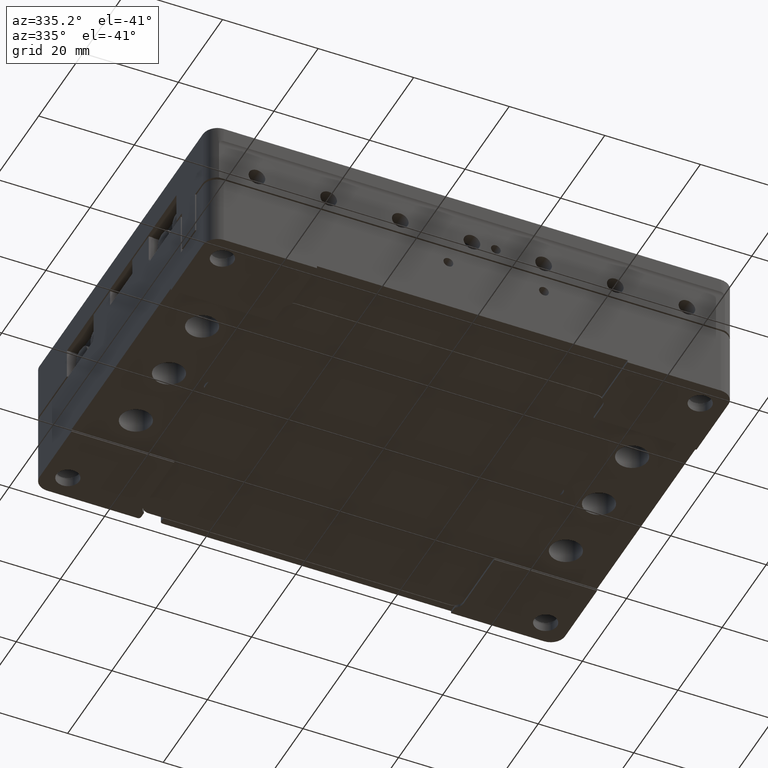
[diagram: clean part render]
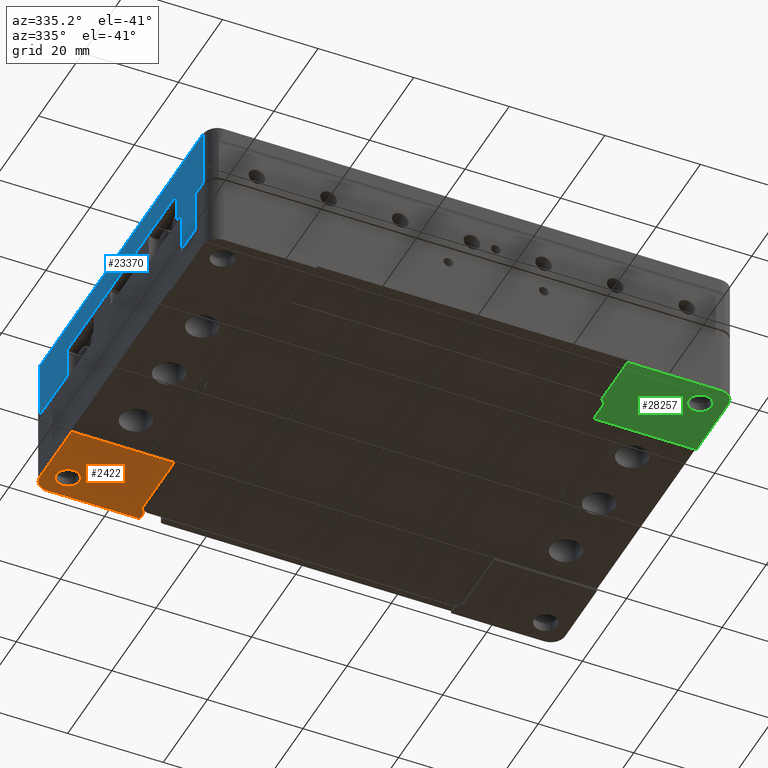
[diagram: same view with three faces highlighted in distinct colors, each labeled with its STEP entity id]
A machine part, auxiliary view with three faces highlighted in distinct colors.
Their STEP definitions:

[orange] entity #2422 — the highlighted planar face has unit normal (0, 0, -1).
#741 = CARTESIAN_POINT ( 'NONE',  ( -33.09999999999999432, 39.50000000000000000, -15.00000000000000000 ) ) ;
#914 = ORIENTED_EDGE ( 'NONE', *, *, #15914, .T. ) ;
#917 = VERTEX_POINT ( 'NONE', #14094 ) ;
#2074 = DIRECTION ( 'NONE',  ( 1.000000000000000000, 0.000000000000000000, 0.000000000000000000 ) ) ;
#2422 = ADVANCED_FACE ( 'NONE', ( #6716, #17646 ), #17818, .T. ) ;
#2550 = LINE ( 'NONE', #35309, #31208 ) ;
#2868 = ORIENTED_EDGE ( 'NONE', *, *, #35227, .T. ) ;
#2891 = DIRECTION ( 'NONE',  ( 0.000000000000000000, 0.000000000000000000, 1.000000000000000000 ) ) ;
#3224 = CARTESIAN_POINT ( 'NONE',  ( -55.00000000000000000, 40.00000000000000000, -15.00000000000000000 ) ) ;
#3294 = VERTEX_POINT ( 'NONE', #33971 ) ;
#4594 = ORIENTED_EDGE ( 'NONE', *, *, #30268, .T. ) ;
#5190 = DIRECTION ( 'NONE',  ( 0.000000000000000000, -1.000000000000000000, 0.000000000000000000 ) ) ;
#5610 = CARTESIAN_POINT ( 'NONE',  ( -33.09999999999999432, 40.00000000000000000, -15.00000000000000000 ) ) ;
#6716 = FACE_OUTER_BOUND ( 'NONE', #35248, .T. ) ;
#6754 = AXIS2_PLACEMENT_3D ( 'NONE', #33745, #28025, #9577 ) ;
#6883 = ORIENTED_EDGE ( 'NONE', *, *, #31737, .F. ) ;
#7872 = CARTESIAN_POINT ( 'NONE',  ( -33.50000000000000000, -26.50000000000000000, -15.00000000000000000 ) ) ;
#8054 = VERTEX_POINT ( 'NONE', #9545 ) ;
#8699 = CARTESIAN_POINT ( 'NONE',  ( -47.60000000000000142, 35.00000000000000000, -15.00000000000000000 ) ) ;
#8825 = VECTOR ( 'NONE', #27685, 1000.000000000000000 ) ;
#8880 = AXIS2_PLACEMENT_3D ( 'NONE', #741, #2891, #27778 ) ;
#9545 = CARTESIAN_POINT ( 'NONE',  ( -33.50000000000000000, 22.50000000000000000, -15.00000000000000000 ) ) ;
#9560 = VERTEX_POINT ( 'NONE', #5610 ) ;
#9577 = DIRECTION ( 'NONE',  ( 0.000000000000000000, -1.000000000000000000, 0.000000000000000000 ) ) ;
#9687 = VECTOR ( 'NONE', #31334, 1000.000000000000000 ) ;
#9711 = VERTEX_POINT ( 'NONE', #33696 ) ;
#10277 = EDGE_CURVE ( 'NONE', #22558, #9560, #27754, .T. ) ;
#11480 = ORIENTED_EDGE ( 'NONE', *, *, #24322, .T. ) ;
#11689 = EDGE_CURVE ( 'NONE', #19168, #22558, #31914, .T. ) ;
#13103 = VERTEX_POINT ( 'NONE', #8699 ) ;
#13762 = CARTESIAN_POINT ( 'NONE',  ( -32.59999999999999432, 38.17032930884949593, -15.00000000000000000 ) ) ;
#14029 = EDGE_CURVE ( 'NONE', #8054, #917, #14695, .T. ) ;
#14094 = CARTESIAN_POINT ( 'NONE',  ( -55.00000000000000000, 22.50000000000000000, -15.00000000000000000 ) ) ;
#14522 = EDGE_LOOP ( 'NONE', ( #2868, #914 ) ) ;
#14695 = LINE ( 'NONE', #20414, #9687 ) ;
#14879 = EDGE_CURVE ( 'NONE', #9711, #28971, #33056, .T. ) ;
#15914 = EDGE_CURVE ( 'NONE', #3294, #13103, #31766, .T. ) ;
#16101 = AXIS2_PLACEMENT_3D ( 'NONE', #33293, #19161, #25073 ) ;
#16273 = CARTESIAN_POINT ( 'NONE',  ( -52.00000000000000000, 37.00000000000000000, -15.00000000000000000 ) ) ;
#16771 = CARTESIAN_POINT ( 'NONE',  ( -32.59999999999999432, -40.00000000000000000, -15.00000000000000000 ) ) ;
#17541 = CARTESIAN_POINT ( 'NONE',  ( -33.50000000000000000, 36.50000000000000000, -15.00000000000000000 ) ) ;
#17646 = FACE_BOUND ( 'NONE', #14522, .T. ) ;
#17818 = PLANE ( 'NONE',  #6754 ) ;
#18122 = VECTOR ( 'NONE', #33300, 1000.000000000000000 ) ;
#18711 = CIRCLE ( 'NONE', #27301, 2.399999999999999467 ) ;
#18749 = DIRECTION ( 'NONE',  ( 1.000000000000000000, 0.000000000000000000, 0.000000000000000000 ) ) ;
#18846 = ORIENTED_EDGE ( 'NONE', *, *, #10277, .T. ) ;
#19161 = DIRECTION ( 'NONE',  ( 0.000000000000000000, 0.000000000000000000, 1.000000000000000000 ) ) ;
#19168 = VERTEX_POINT ( 'NONE', #30992 ) ;
#20414 = CARTESIAN_POINT ( 'NONE',  ( -65.00000000000000000, 22.50000000000000000, -15.00000000000000000 ) ) ;
#21251 = CIRCLE ( 'NONE', #16101, 2.000000000000001776 ) ;
#21462 = ORIENTED_EDGE ( 'NONE', *, *, #14029, .T. ) ;
#22558 = VERTEX_POINT ( 'NONE', #25760 ) ;
#22742 = ORIENTED_EDGE ( 'NONE', *, *, #14879, .T. ) ;
#23767 = AXIS2_PLACEMENT_3D ( 'NONE', #32348, #24833, #18749 ) ;
#23864 = DIRECTION ( 'NONE',  ( 0.000000000000000000, 1.000000000000000000, 0.000000000000000000 ) ) ;
#24317 = DIRECTION ( 'NONE',  ( -1.000000000000000000, 0.000000000000000000, 0.000000000000000000 ) ) ;
#24322 = EDGE_CURVE ( 'NONE', #28971, #26309, #21251, .T. ) ;
#24833 = DIRECTION ( 'NONE',  ( 0.000000000000000000, 0.000000000000000000, 1.000000000000000000 ) ) ;
#25073 = DIRECTION ( 'NONE',  ( -1.000000000000000000, -6.938893903907222067E-15, 0.000000000000000000 ) ) ;
#25760 = CARTESIAN_POINT ( 'NONE',  ( -52.00000000000000000, 40.00000000000000000, -15.00000000000000000 ) ) ;
#26309 = VERTEX_POINT ( 'NONE', #17541 ) ;
#27301 = AXIS2_PLACEMENT_3D ( 'NONE', #31985, #35017, #2074 ) ;
#27541 = DIRECTION ( 'NONE',  ( 0.000000000000000000, 0.000000000000000000, -1.000000000000000000 ) ) ;
#27685 = DIRECTION ( 'NONE',  ( 0.000000000000000000, -1.000000000000000000, 0.000000000000000000 ) ) ;
#27754 = LINE ( 'NONE', #3224, #18122 ) ;
#27778 = DIRECTION ( 'NONE',  ( -1.000000000000000000, 0.000000000000000000, 0.000000000000000000 ) ) ;
#28025 = DIRECTION ( 'NONE',  ( 0.000000000000000000, 0.000000000000000000, -1.000000000000000000 ) ) ;
#28789 = VECTOR ( 'NONE', #5190, 1000.000000000000000 ) ;
#28971 = VERTEX_POINT ( 'NONE', #13762 ) ;
#29190 = ORIENTED_EDGE ( 'NONE', *, *, #32811, .T. ) ;
#30268 = EDGE_CURVE ( 'NONE', #26309, #8054, #32388, .T. ) ;
#30586 = CIRCLE ( 'NONE', #8880, 0.5000000000000004441 ) ;
#30992 = CARTESIAN_POINT ( 'NONE',  ( -55.00000000000000000, 37.00000000000000000, -15.00000000000000000 ) ) ;
#31208 = VECTOR ( 'NONE', #23864, 1000.000000000000000 ) ;
#31334 = DIRECTION ( 'NONE',  ( -1.000000000000000000, 0.000000000000000000, 0.000000000000000000 ) ) ;
#31737 = EDGE_CURVE ( 'NONE', #9711, #9560, #30586, .T. ) ;
#31766 = CIRCLE ( 'NONE', #23767, 2.399999999999999467 ) ;
#31914 = CIRCLE ( 'NONE', #33061, 3.000000000000002665 ) ;
#31985 = CARTESIAN_POINT ( 'NONE',  ( -50.00000000000000000, 35.00000000000000000, -15.00000000000000000 ) ) ;
#32348 = CARTESIAN_POINT ( 'NONE',  ( -50.00000000000000000, 35.00000000000000000, -15.00000000000000000 ) ) ;
#32388 = LINE ( 'NONE', #7872, #28789 ) ;
#32811 = EDGE_CURVE ( 'NONE', #917, #19168, #2550, .T. ) ;
#33056 = LINE ( 'NONE', #16771, #8825 ) ;
#33061 = AXIS2_PLACEMENT_3D ( 'NONE', #16273, #27541, #24317 ) ;
#33293 = CARTESIAN_POINT ( 'NONE',  ( -31.50000000000000000, 36.50000000000000000, -15.00000000000000000 ) ) ;
#33300 = DIRECTION ( 'NONE',  ( 1.000000000000000000, 0.000000000000000000, 0.000000000000000000 ) ) ;
#33696 = CARTESIAN_POINT ( 'NONE',  ( -32.59999999999999432, 39.50000000000000000, -15.00000000000000000 ) ) ;
#33745 = CARTESIAN_POINT ( 'NONE',  ( -55.00000000000000000, -40.00000000000000000, -15.00000000000000000 ) ) ;
#33971 = CARTESIAN_POINT ( 'NONE',  ( -52.40000000000000568, 35.00000000000000000, -15.00000000000000000 ) ) ;
#35017 = DIRECTION ( 'NONE',  ( 0.000000000000000000, 0.000000000000000000, 1.000000000000000000 ) ) ;
#35227 = EDGE_CURVE ( 'NONE', #13103, #3294, #18711, .T. ) ;
#35248 = EDGE_LOOP ( 'NONE', ( #18846, #6883, #22742, #11480, #4594, #21462, #29190, #35286 ) ) ;
#35286 = ORIENTED_EDGE ( 'NONE', *, *, #11689, .T. ) ;
#35309 = CARTESIAN_POINT ( 'NONE',  ( -55.00000000000000000, 0.000000000000000000, -15.00000000000000000 ) ) ;

[blue] entity #23370 — the highlighted planar face has unit normal (1, 0, 0).
#480 = VERTEX_POINT ( 'NONE', #17181 ) ;
#857 = DIRECTION ( 'NONE',  ( 0.000000000000000000, 0.000000000000000000, 1.000000000000000000 ) ) ;
#1091 = EDGE_CURVE ( 'NONE', #33461, #32857, #20969, .T. ) ;
#1403 = CARTESIAN_POINT ( 'NONE',  ( -55.00000000000000000, -33.50000000000000000, -8.500000000000000000 ) ) ;
#1636 = LINE ( 'NONE', #9522, #26153 ) ;
#1797 = ORIENTED_EDGE ( 'NONE', *, *, #1091, .F. ) ;
#1894 = VECTOR ( 'NONE', #15584, 1000.000000000000000 ) ;
#2779 = CARTESIAN_POINT ( 'NONE',  ( -55.00000000000000000, -25.00000000000000000, 0.5000000000000000000 ) ) ;
#2828 = CARTESIAN_POINT ( 'NONE',  ( -54.99999999790499317, 36.99999998782499233, 12.90000000411390069 ) ) ;
#3064 = CARTESIAN_POINT ( 'NONE',  ( -55.00000000000000000, 24.60000000000000142, 7.000000000000000000 ) ) ;
#3381 = LINE ( 'NONE', #22876, #17208 ) ;
#3481 = DIRECTION ( 'NONE',  ( 0.000000000000000000, 1.000000000000000000, 0.000000000000000000 ) ) ;
#3740 = CARTESIAN_POINT ( 'NONE',  ( -55.00000000000000000, 24.60000000000000142, 0.000000000000000000 ) ) ;
#4223 = LINE ( 'NONE', #25397, #15716 ) ;
#4563 = DIRECTION ( 'NONE',  ( 0.000000000000000000, 0.000000000000000000, 1.000000000000000000 ) ) ;
#4812 = EDGE_CURVE ( 'NONE', #18769, #14215, #27506, .T. ) ;
#5675 = VERTEX_POINT ( 'NONE', #2828 ) ;
#6000 = DIRECTION ( 'NONE',  ( 1.000000000000000000, 0.000000000000000000, 0.000000000000000000 ) ) ;
#6022 = VECTOR ( 'NONE', #10032, 1000.000000000000000 ) ;
#6473 = EDGE_CURVE ( 'NONE', #32857, #33392, #18176, .T. ) ;
#6497 = CARTESIAN_POINT ( 'NONE',  ( -55.00000000000000000, 37.00000000000000000, 0.5000000000000000000 ) ) ;
#6971 = DIRECTION ( 'NONE',  ( 0.000000000000000000, 0.000000000000000000, -1.000000000000000000 ) ) ;
#7136 = VECTOR ( 'NONE', #31466, 1000.000000000000000 ) ;
#7140 = EDGE_CURVE ( 'NONE', #14215, #480, #20015, .T. ) ;
#7906 = VECTOR ( 'NONE', #6971, 1000.000000000000000 ) ;
#7949 = VECTOR ( 'NONE', #30269, 1000.000000000000000 ) ;
#8540 = ORIENTED_EDGE ( 'NONE', *, *, #14480, .F. ) ;
#8772 = EDGE_CURVE ( 'NONE', #24643, #20369, #4223, .T. ) ;
#8805 = ORIENTED_EDGE ( 'NONE', *, *, #7140, .F. ) ;
#9142 = VERTEX_POINT ( 'NONE', #13524 ) ;
#9345 = CARTESIAN_POINT ( 'NONE',  ( -55.00000000000000000, 0.000000000000000000, -8.500000000000000000 ) ) ;
#9522 = CARTESIAN_POINT ( 'NONE',  ( -55.00000000000000000, -40.00000000000000000, 7.000000000000000000 ) ) ;
#10032 = DIRECTION ( 'NONE',  ( 0.000000000000000000, 0.000000000000000000, 1.000000000000000000 ) ) ;
#10976 = VERTEX_POINT ( 'NONE', #6497 ) ;
#11121 = ORIENTED_EDGE ( 'NONE', *, *, #12516, .F. ) ;
#12077 = CARTESIAN_POINT ( 'NONE',  ( -54.99999999683110019, -36.99999997970999743, 12.90000000420373993 ) ) ;
#12337 = LINE ( 'NONE', #3740, #7906 ) ;
#12516 = EDGE_CURVE ( 'NONE', #9142, #10976, #18999, .T. ) ;
#13524 = CARTESIAN_POINT ( 'NONE',  ( -55.00000000000000000, 24.60000000000000142, 0.5000000000000000000 ) ) ;
#13809 = VERTEX_POINT ( 'NONE', #3064 ) ;
#13812 = CARTESIAN_POINT ( 'NONE',  ( -55.00000000000000000, 0.000000000000000000, 0.5000000000000000000 ) ) ;
#14215 = VERTEX_POINT ( 'NONE', #26660 ) ;
#14480 = EDGE_CURVE ( 'NONE', #480, #33461, #3381, .T. ) ;
#14762 = ORIENTED_EDGE ( 'NONE', *, *, #19199, .F. ) ;
#15055 = LINE ( 'NONE', #34210, #1894 ) ;
#15584 = DIRECTION ( 'NONE',  ( 0.000000000000000000, -1.000000000000000000, 0.000000000000000000 ) ) ;
#15716 = VECTOR ( 'NONE', #857, 1000.000000000000000 ) ;
#17181 = CARTESIAN_POINT ( 'NONE',  ( -55.00000000000000000, -33.50000000000000000, 0.5000000000000000000 ) ) ;
#17208 = VECTOR ( 'NONE', #33803, 1000.000000000000000 ) ;
#18117 = DIRECTION ( 'NONE',  ( 0.000000000000000000, 1.000000000000000000, 0.000000000000000000 ) ) ;
#18176 = LINE ( 'NONE', #29089, #29365 ) ;
#18351 = VECTOR ( 'NONE', #3481, 1000.000000000000000 ) ;
#18769 = VERTEX_POINT ( 'NONE', #12077 ) ;
#18895 = CARTESIAN_POINT ( 'NONE',  ( -55.00000000000000000, 0.000000000000000000, 0.000000000000000000 ) ) ;
#18999 = LINE ( 'NONE', #13812, #7949 ) ;
#19106 = LINE ( 'NONE', #32532, #6022 ) ;
#19199 = EDGE_CURVE ( 'NONE', #20369, #13809, #1636, .T. ) ;
#19351 = ORIENTED_EDGE ( 'NONE', *, *, #22201, .F. ) ;
#19606 = DIRECTION ( 'NONE',  ( 0.000000000000000000, 1.000000000000000000, 0.000000000000000000 ) ) ;
#19654 = EDGE_CURVE ( 'NONE', #13809, #9142, #12337, .T. ) ;
#20015 = LINE ( 'NONE', #30928, #7136 ) ;
#20369 = VERTEX_POINT ( 'NONE', #27441 ) ;
#20436 = DIRECTION ( 'NONE',  ( 0.000000000000000000, 1.000000000000000000, 0.000000000000000000 ) ) ;
#20706 = VECTOR ( 'NONE', #21953, 1000.000000000000000 ) ;
#20969 = LINE ( 'NONE', #9345, #31807 ) ;
#21573 = PLANE ( 'NONE',  #28134 ) ;
#21953 = DIRECTION ( 'NONE',  ( 0.000000000000000000, 0.000000000000000000, -1.000000000000000000 ) ) ;
#22201 = EDGE_CURVE ( 'NONE', #33392, #24643, #30678, .T. ) ;
#22876 = CARTESIAN_POINT ( 'NONE',  ( -55.00000000000000000, -33.50000000000000000, 0.000000000000000000 ) ) ;
#23370 = ADVANCED_FACE ( 'NONE', ( #35175 ), #21573, .F. ) ;
#23380 = ORIENTED_EDGE ( 'NONE', *, *, #6473, .F. ) ;
#24035 = CARTESIAN_POINT ( 'NONE',  ( -55.00000000000000000, -27.50000000000000000, -8.500000000000000000 ) ) ;
#24486 = ORIENTED_EDGE ( 'NONE', *, *, #32022, .F. ) ;
#24641 = CARTESIAN_POINT ( 'NONE',  ( -55.00000000000000000, -36.99999997970999743, -16.44679999999999964 ) ) ;
#24643 = VERTEX_POINT ( 'NONE', #2779 ) ;
#25397 = CARTESIAN_POINT ( 'NONE',  ( -55.00000000000000000, -25.00000000000000000, 0.000000000000000000 ) ) ;
#26153 = VECTOR ( 'NONE', #20436, 1000.000000000000000 ) ;
#26660 = CARTESIAN_POINT ( 'NONE',  ( -55.00000000000000000, -36.99999998985499872, 0.5000000000000000000 ) ) ;
#27441 = CARTESIAN_POINT ( 'NONE',  ( -55.00000000000000000, -25.00000000000000000, 7.000000000000000000 ) ) ;
#27506 = LINE ( 'NONE', #24641, #20706 ) ;
#28009 = CARTESIAN_POINT ( 'NONE',  ( -55.00000000000000000, 0.000000000000000000, 0.5000000000000000000 ) ) ;
#28134 = AXIS2_PLACEMENT_3D ( 'NONE', #18895, #6000, #19606 ) ;
#29089 = CARTESIAN_POINT ( 'NONE',  ( -55.00000000000000000, -27.50000000000000000, 0.000000000000000000 ) ) ;
#29365 = VECTOR ( 'NONE', #4563, 1000.000000000000000 ) ;
#30079 = EDGE_CURVE ( 'NONE', #5675, #18769, #15055, .T. ) ;
#30269 = DIRECTION ( 'NONE',  ( 0.000000000000000000, 1.000000000000000000, 0.000000000000000000 ) ) ;
#30678 = LINE ( 'NONE', #28009, #18351 ) ;
#30817 = ORIENTED_EDGE ( 'NONE', *, *, #19654, .F. ) ;
#30928 = CARTESIAN_POINT ( 'NONE',  ( -55.00000000000000000, 0.000000000000000000, 0.5000000000000000000 ) ) ;
#31313 = ORIENTED_EDGE ( 'NONE', *, *, #30079, .F. ) ;
#31466 = DIRECTION ( 'NONE',  ( 0.000000000000000000, 1.000000000000000000, 0.000000000000000000 ) ) ;
#31807 = VECTOR ( 'NONE', #18117, 1000.000000000000000 ) ;
#32022 = EDGE_CURVE ( 'NONE', #10976, #5675, #19106, .T. ) ;
#32146 = CARTESIAN_POINT ( 'NONE',  ( -55.00000000000000000, -27.50000000000000000, 0.5000000000000000000 ) ) ;
#32526 = ORIENTED_EDGE ( 'NONE', *, *, #4812, .F. ) ;
#32532 = CARTESIAN_POINT ( 'NONE',  ( -55.00000000000000000, 37.00000000000000000, 0.000000000000000000 ) ) ;
#32857 = VERTEX_POINT ( 'NONE', #24035 ) ;
#33392 = VERTEX_POINT ( 'NONE', #32146 ) ;
#33461 = VERTEX_POINT ( 'NONE', #1403 ) ;
#33803 = DIRECTION ( 'NONE',  ( 0.000000000000000000, 0.000000000000000000, -1.000000000000000000 ) ) ;
#34210 = CARTESIAN_POINT ( 'NONE',  ( -54.99999999581000054, 0.000000000000000000, 12.90000000419000159 ) ) ;
#34336 = EDGE_LOOP ( 'NONE', ( #35240, #19351, #23380, #1797, #8540, #8805, #32526, #31313, #24486, #11121, #30817, #14762 ) ) ;
#35175 = FACE_OUTER_BOUND ( 'NONE', #34336, .T. ) ;
#35240 = ORIENTED_EDGE ( 'NONE', *, *, #8772, .F. ) ;

[green] entity #28257 — the highlighted planar face has unit normal (0, 0, -1).
#728 = ORIENTED_EDGE ( 'NONE', *, *, #32498, .T. ) ;
#731 = EDGE_LOOP ( 'NONE', ( #13659, #10429 ) ) ;
#791 = DIRECTION ( 'NONE',  ( 0.000000000000000000, 1.000000000000000000, 0.000000000000000000 ) ) ;
#3077 = CIRCLE ( 'NONE', #16248, 2.399999999999999467 ) ;
#3427 = VERTEX_POINT ( 'NONE', #7289 ) ;
#3498 = DIRECTION ( 'NONE',  ( 0.000000000000000000, -1.000000000000000000, 0.000000000000000000 ) ) ;
#3691 = VECTOR ( 'NONE', #28707, 1000.000000000000000 ) ;
#4615 = DIRECTION ( 'NONE',  ( -1.000000000000000000, 0.000000000000000000, 0.000000000000000000 ) ) ;
#5386 = LINE ( 'NONE', #35277, #15233 ) ;
#6784 = AXIS2_PLACEMENT_3D ( 'NONE', #26035, #25683, #15291 ) ;
#7104 = CARTESIAN_POINT ( 'NONE',  ( 55.00000000000000000, -37.00000000000000000, -15.00000000000000000 ) ) ;
#7211 = DIRECTION ( 'NONE',  ( 1.000000000000000000, 0.000000000000000000, 0.000000000000000000 ) ) ;
#7289 = CARTESIAN_POINT ( 'NONE',  ( 52.00000000000000000, -40.00000000000000000, -15.00000000000000000 ) ) ;
#7301 = DIRECTION ( 'NONE',  ( 0.000000000000000000, 0.000000000000000000, -1.000000000000000000 ) ) ;
#7816 = ORIENTED_EDGE ( 'NONE', *, *, #14607, .T. ) ;
#7921 = CARTESIAN_POINT ( 'NONE',  ( 50.00000000000000000, -35.00000000000000000, -15.00000000000000000 ) ) ;
#8133 = EDGE_CURVE ( 'NONE', #25640, #28668, #26377, .T. ) ;
#8348 = CARTESIAN_POINT ( 'NONE',  ( -55.00000000000000000, -40.00000000000000000, -15.00000000000000000 ) ) ;
#9179 = CARTESIAN_POINT ( 'NONE',  ( 47.60000000000000142, -35.00000000000000000, -15.00000000000000000 ) ) ;
#9294 = AXIS2_PLACEMENT_3D ( 'NONE', #8348, #22643, #3498 ) ;
#10030 = EDGE_CURVE ( 'NONE', #3427, #32873, #5386, .T. ) ;
#10429 = ORIENTED_EDGE ( 'NONE', *, *, #14919, .T. ) ;
#11389 = PLANE ( 'NONE',  #9294 ) ;
#12721 = CARTESIAN_POINT ( 'NONE',  ( 32.50000000000000000, -28.23205080756944696, -15.00000000000000000 ) ) ;
#13138 = CARTESIAN_POINT ( 'NONE',  ( 33.50000000000000000, -22.50000000000000000, -15.00000000000000000 ) ) ;
#13462 = CARTESIAN_POINT ( 'NONE',  ( 65.00000000000000000, -22.50000000000000000, -15.00000000000000000 ) ) ;
#13659 = ORIENTED_EDGE ( 'NONE', *, *, #30623, .T. ) ;
#13964 = CIRCLE ( 'NONE', #33973, 2.399999999999999467 ) ;
#14542 = EDGE_LOOP ( 'NONE', ( #31954, #21168, #728, #18269, #16645, #7816, #33026 ) ) ;
#14607 = EDGE_CURVE ( 'NONE', #20210, #3427, #28833, .T. ) ;
#14919 = EDGE_CURVE ( 'NONE', #35388, #34844, #13964, .T. ) ;
#15233 = VECTOR ( 'NONE', #27224, 1000.000000000000000 ) ;
#15291 = DIRECTION ( 'NONE',  ( -1.000000000000000000, 3.469446951953611033E-15, 0.000000000000000000 ) ) ;
#16245 = DIRECTION ( 'NONE',  ( 0.000000000000000000, 0.000000000000000000, 1.000000000000000000 ) ) ;
#16248 = AXIS2_PLACEMENT_3D ( 'NONE', #21254, #16245, #21428 ) ;
#16645 = ORIENTED_EDGE ( 'NONE', *, *, #31321, .F. ) ;
#18269 = ORIENTED_EDGE ( 'NONE', *, *, #8133, .T. ) ;
#18601 = EDGE_CURVE ( 'NONE', #32873, #29992, #24974, .T. ) ;
#18644 = EDGE_CURVE ( 'NONE', #29992, #28391, #29614, .T. ) ;
#19728 = CARTESIAN_POINT ( 'NONE',  ( 32.50000000000000000, -40.00000000000000000, -15.00000000000000000 ) ) ;
#20210 = VERTEX_POINT ( 'NONE', #7104 ) ;
#20231 = VECTOR ( 'NONE', #32963, 1000.000000000000000 ) ;
#21168 = ORIENTED_EDGE ( 'NONE', *, *, #18644, .T. ) ;
#21254 = CARTESIAN_POINT ( 'NONE',  ( 50.00000000000000000, -35.00000000000000000, -15.00000000000000000 ) ) ;
#21428 = DIRECTION ( 'NONE',  ( 1.000000000000000000, 0.000000000000000000, 0.000000000000000000 ) ) ;
#22624 = CARTESIAN_POINT ( 'NONE',  ( 33.50000000000000000, 36.50000000000000000, -15.00000000000000000 ) ) ;
#22643 = DIRECTION ( 'NONE',  ( 0.000000000000000000, 0.000000000000000000, -1.000000000000000000 ) ) ;
#23851 = DIRECTION ( 'NONE',  ( 0.000000000000000000, 0.000000000000000000, 1.000000000000000000 ) ) ;
#24974 = LINE ( 'NONE', #25328, #30769 ) ;
#25328 = CARTESIAN_POINT ( 'NONE',  ( 32.50000000000000000, -40.00000000000000000, -15.00000000000000000 ) ) ;
#25640 = VERTEX_POINT ( 'NONE', #13138 ) ;
#25683 = DIRECTION ( 'NONE',  ( 0.000000000000000000, 0.000000000000000000, 1.000000000000000000 ) ) ;
#26035 = CARTESIAN_POINT ( 'NONE',  ( 31.50000000000000000, -26.50000000000000000, -15.00000000000000000 ) ) ;
#26377 = LINE ( 'NONE', #13462, #20231 ) ;
#27224 = DIRECTION ( 'NONE',  ( -1.000000000000000000, 0.000000000000000000, 0.000000000000000000 ) ) ;
#27478 = LINE ( 'NONE', #22624, #32923 ) ;
#28187 = DIRECTION ( 'NONE',  ( 0.000000000000000000, 1.000000000000000000, 0.000000000000000000 ) ) ;
#28257 = ADVANCED_FACE ( 'NONE', ( #30878, #30348 ), #11389, .T. ) ;
#28354 = LINE ( 'NONE', #34260, #3691 ) ;
#28391 = VERTEX_POINT ( 'NONE', #34098 ) ;
#28668 = VERTEX_POINT ( 'NONE', #30653 ) ;
#28707 = DIRECTION ( 'NONE',  ( 0.000000000000000000, 1.000000000000000000, 0.000000000000000000 ) ) ;
#28833 = CIRCLE ( 'NONE', #34558, 3.000000000000002665 ) ;
#29135 = CARTESIAN_POINT ( 'NONE',  ( 52.00000000000000000, -37.00000000000000000, -15.00000000000000000 ) ) ;
#29614 = CIRCLE ( 'NONE', #6784, 2.000000000000001776 ) ;
#29992 = VERTEX_POINT ( 'NONE', #12721 ) ;
#30348 = FACE_BOUND ( 'NONE', #731, .T. ) ;
#30623 = EDGE_CURVE ( 'NONE', #34844, #35388, #3077, .T. ) ;
#30653 = CARTESIAN_POINT ( 'NONE',  ( 55.00000000000000000, -22.50000000000000000, -15.00000000000000000 ) ) ;
#30769 = VECTOR ( 'NONE', #791, 1000.000000000000000 ) ;
#30878 = FACE_OUTER_BOUND ( 'NONE', #14542, .T. ) ;
#31321 = EDGE_CURVE ( 'NONE', #20210, #28668, #28354, .T. ) ;
#31954 = ORIENTED_EDGE ( 'NONE', *, *, #18601, .T. ) ;
#32498 = EDGE_CURVE ( 'NONE', #28391, #25640, #27478, .T. ) ;
#32549 = CARTESIAN_POINT ( 'NONE',  ( 52.40000000000000568, -35.00000000000000000, -15.00000000000000000 ) ) ;
#32873 = VERTEX_POINT ( 'NONE', #19728 ) ;
#32923 = VECTOR ( 'NONE', #28187, 1000.000000000000000 ) ;
#32963 = DIRECTION ( 'NONE',  ( 1.000000000000000000, 0.000000000000000000, 0.000000000000000000 ) ) ;
#33026 = ORIENTED_EDGE ( 'NONE', *, *, #10030, .T. ) ;
#33973 = AXIS2_PLACEMENT_3D ( 'NONE', #7921, #23851, #7211 ) ;
#34098 = CARTESIAN_POINT ( 'NONE',  ( 33.50000000000000000, -26.50000000000000000, -15.00000000000000000 ) ) ;
#34260 = CARTESIAN_POINT ( 'NONE',  ( 55.00000000000000000, 0.000000000000000000, -15.00000000000000000 ) ) ;
#34558 = AXIS2_PLACEMENT_3D ( 'NONE', #29135, #7301, #4615 ) ;
#34844 = VERTEX_POINT ( 'NONE', #32549 ) ;
#35277 = CARTESIAN_POINT ( 'NONE',  ( -55.00000000000000000, -40.00000000000000000, -15.00000000000000000 ) ) ;
#35388 = VERTEX_POINT ( 'NONE', #9179 ) ;